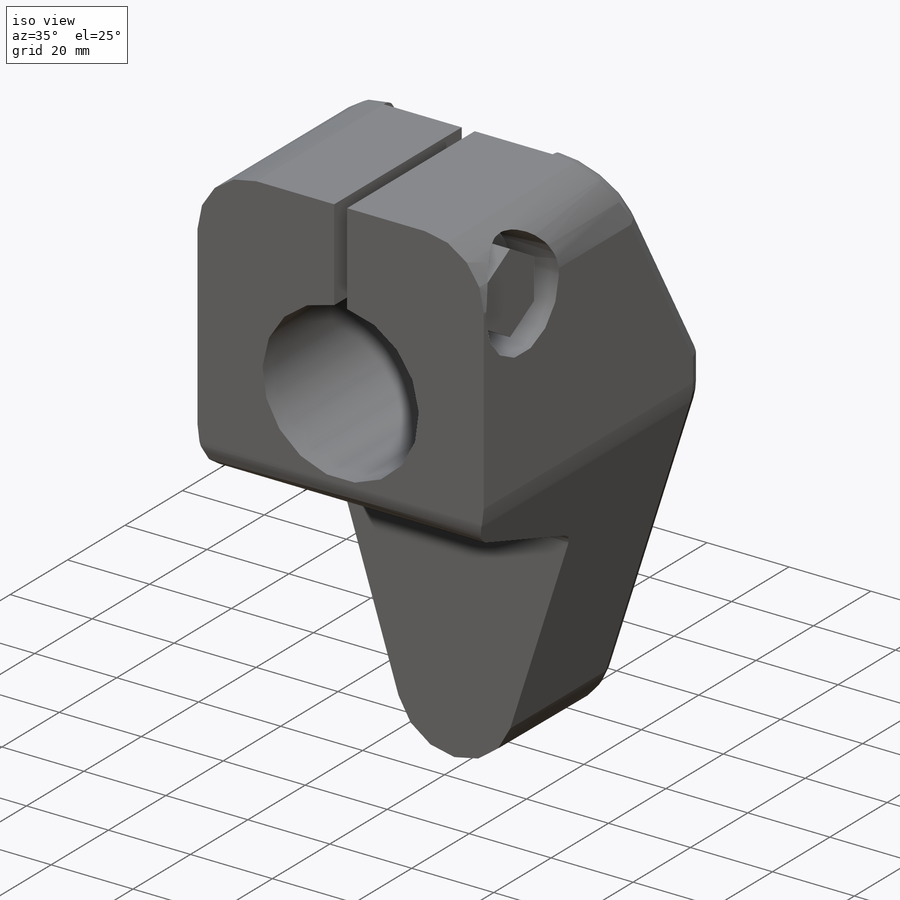
[diagram: iso view]
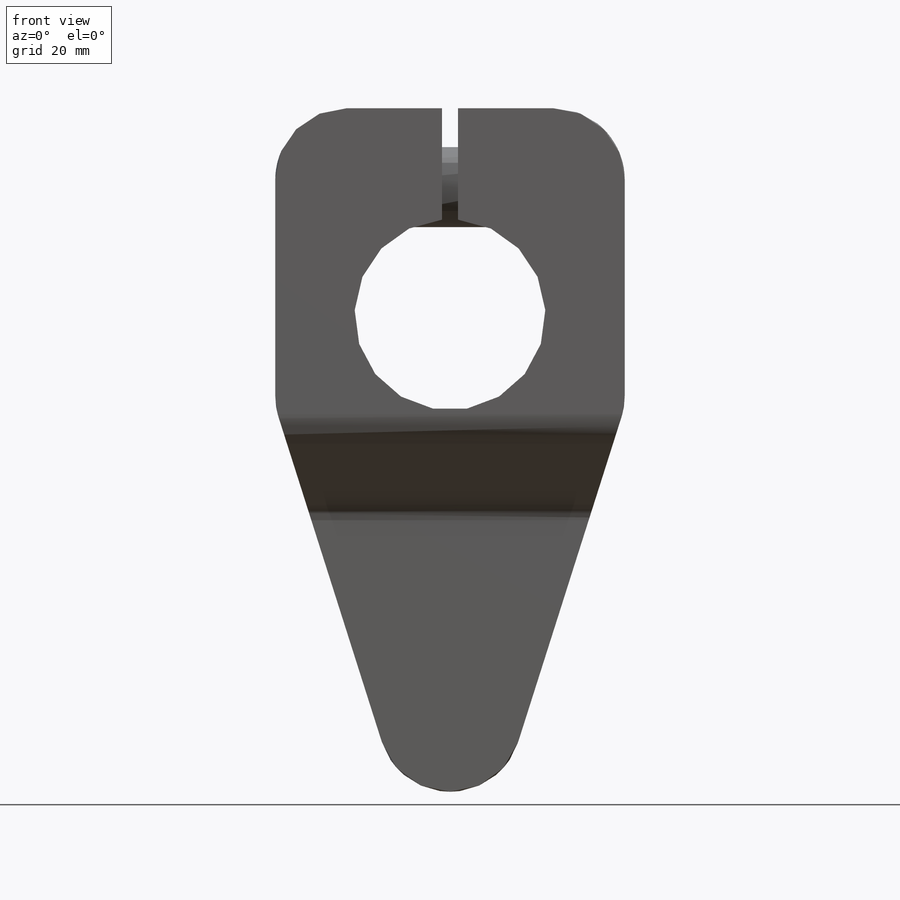
[diagram: front view]
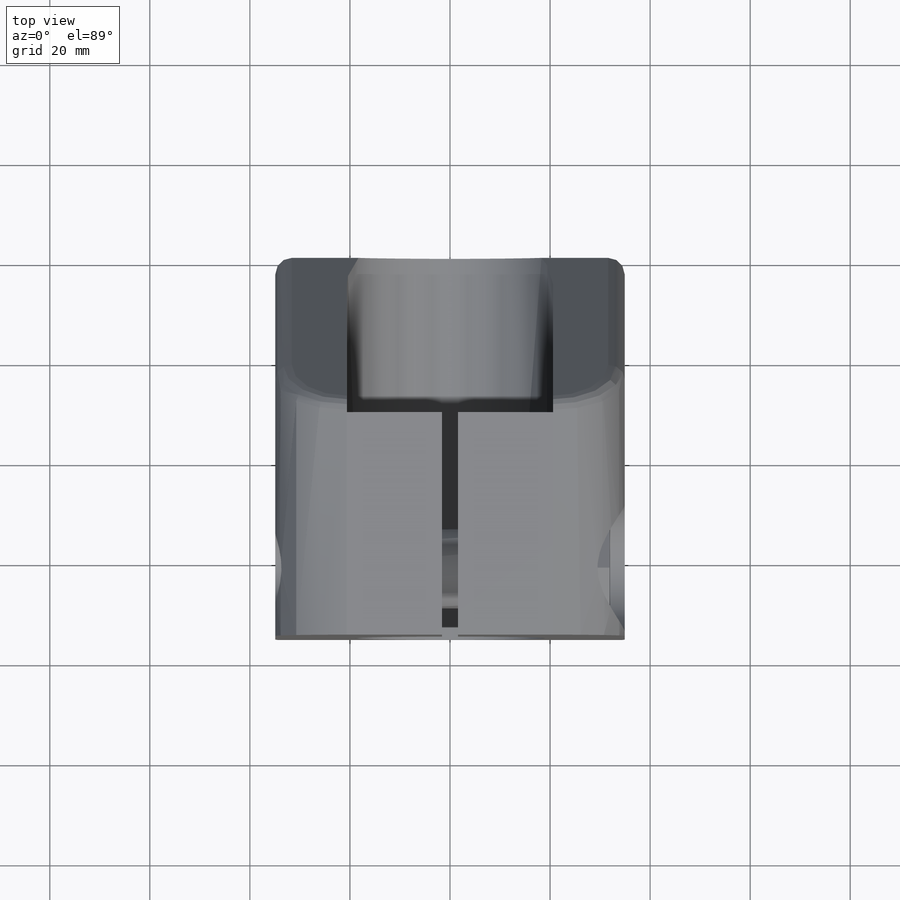
[diagram: top view]
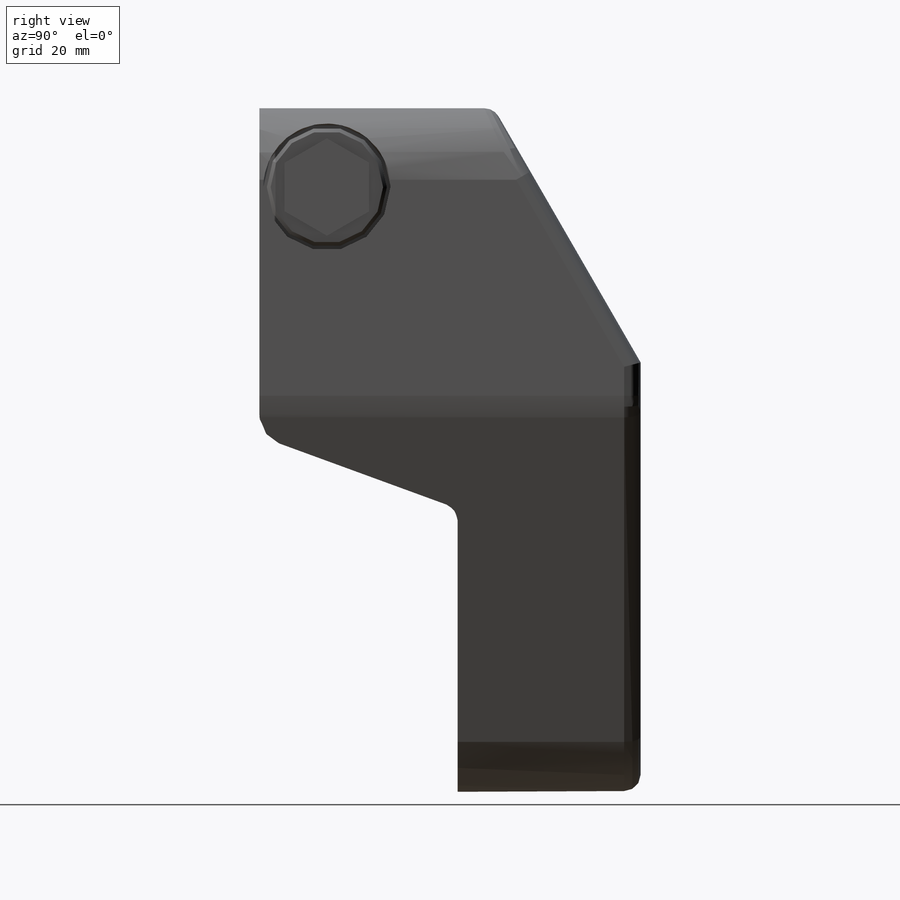
[diagram: right view]
SOLIDWORKS PART (.sldprt)
format: sldprt  version: not decoded by parser v0  size: 356,864 bytes
history: native  units: mm
features: sketch x8, cut_extrude x4, extrude x2, fillet x2, material x1, plane x1, cut_revolve x1, revolve x1, chamfer x1 (+13 scaffold rows collapsed)
feature tree (34):
  scaffold x13  (default folders/planes/origin — collapsed)
  material  "Alloy Steel"
  sketch  "Sketch1"  dims[c1.D1=38.1381mm c1.D2=14.3002mm c1.D6=25.4mm c1.D4=14.3002mm c1.D3=81.0514mm c2.D4=41.275mm c2.D5=41.275mm c2.D7=69.85mm c2.D6=59.69mm]
  extrude  "Extrude1"  Depth=76.2mm
  fillet  "Fillet1"  Radius=14.3002mm
  sketch  "Sketch2"  dims[c1.D1=3.302mm c1.D4=6.35mm c1.D9=3.048mm c1.D10=3.048mm c2.D9=3.302mm c2.D2=38.1mm c2.D3=36.4998mm c3.D3=30.0deg c3.D5=19.8374mm c3.D6=~21.24202mm c3.D7=22.225mm c3.D8=33.274mm c3.D10=38.1mm c4.D8=36.576mm c4.D2=44.958mm c4.D9=51.562mm c4.D6=41.0718mm]
  cut_extrude  "Cut-Extrude1"  [1 undecoded]
  sketch  "Sketch3"  dims[D2=20.6248mm D1=41.2496mm]
  cut_extrude  "Cut-Extrude2"  Depth=44.45mm
  sketch  "Sketch4"  dims[D1=3.175mm]
  cut_extrude  "Cut-Extrude3"  Depth=44.45mm
  fillet  "Fillet3"  Radius=3.302mm
  plane  "Plane1"  Offset=25.5016mm
  sketch  "Sketch6"  dims[c1.D1=25.4mm c1.D2=9.525mm c1.D3=~15.982932mm c2.D1=25.4mm c2.D2=19.05mm c2.D3=20.6502mm c2.D4=16.256mm c2.D5=13.4874mm]
  cut_revolve  "Cut-Revolve1"  Angle=360deg
  sketch  "Sketch7"  dims[D1=16.002mm D2=24.003mm D3=8.0264mm D4=9.525mm]
  revolve  "Revolve1"  Angle=360deg
  chamfer  "Chamfer1"  Distance=0.762mm Angle=45deg
  sketch  "Sketch8"  dims[D1=16.8656mm]
  extrude  "Extrude2"  Depth=7.9756mm
  sketch  "Sketch9"  dims[D1=14.5288mm]
  cut_extrude  "Cut-Extrude4"  Depth=9.525mm
decode coverage: 18 of 19 modeling features carry decoded parameters
note: ~ marks probable driven/reference dimensions
note: 1 parameter value undecoded
note: suppression state not decoded; provenance and decode notes live in map.json
